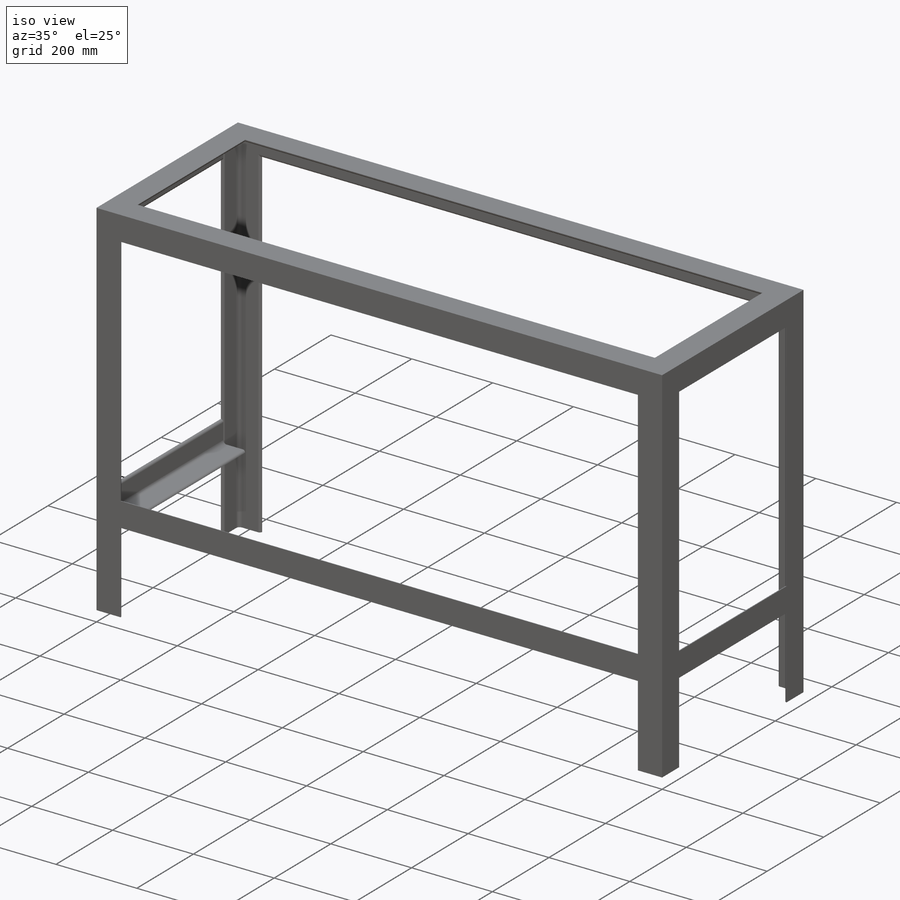
[diagram: iso view]
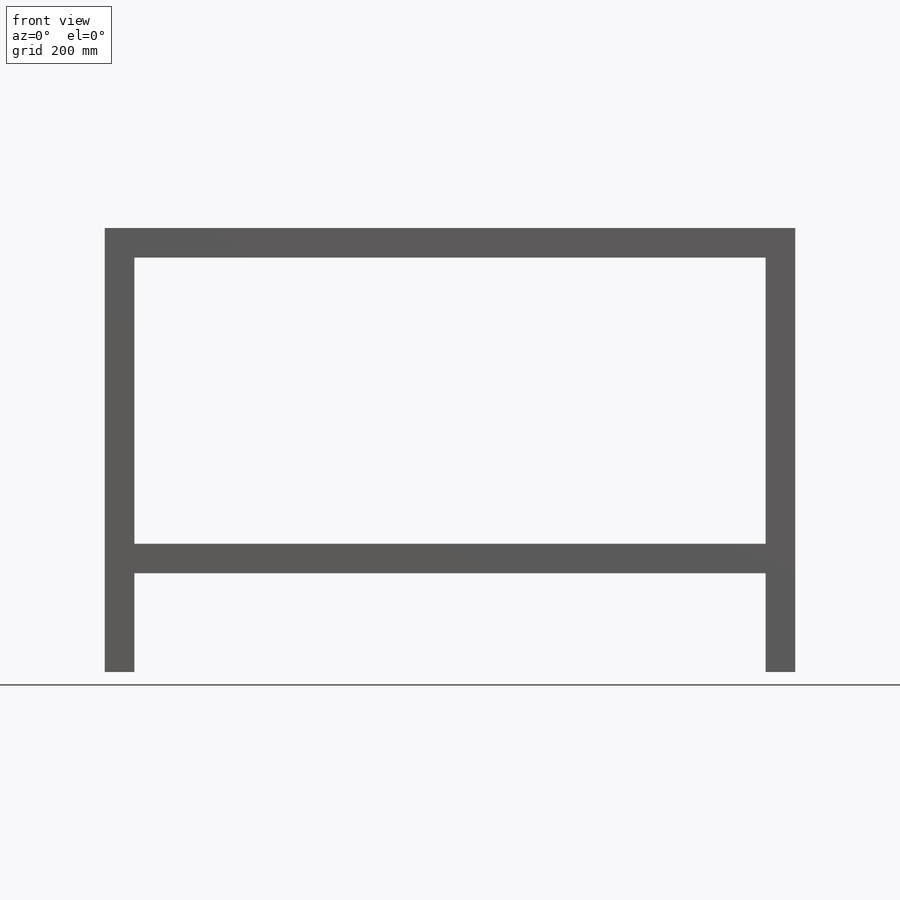
[diagram: front view]
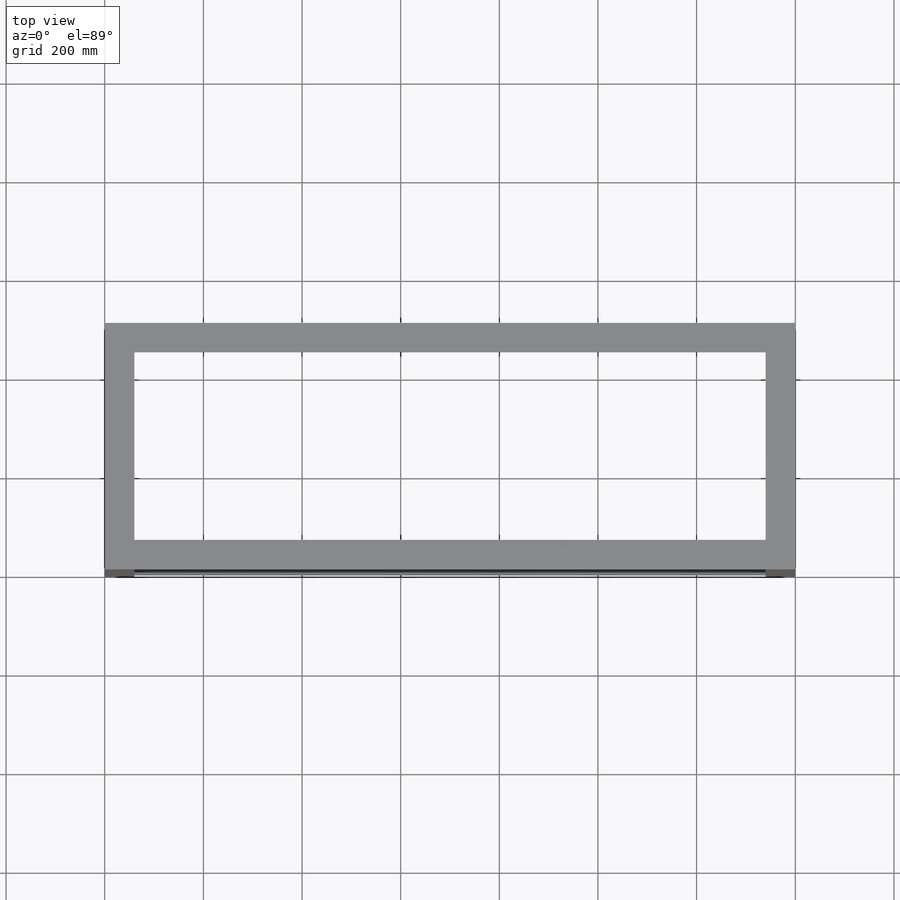
[diagram: top view]
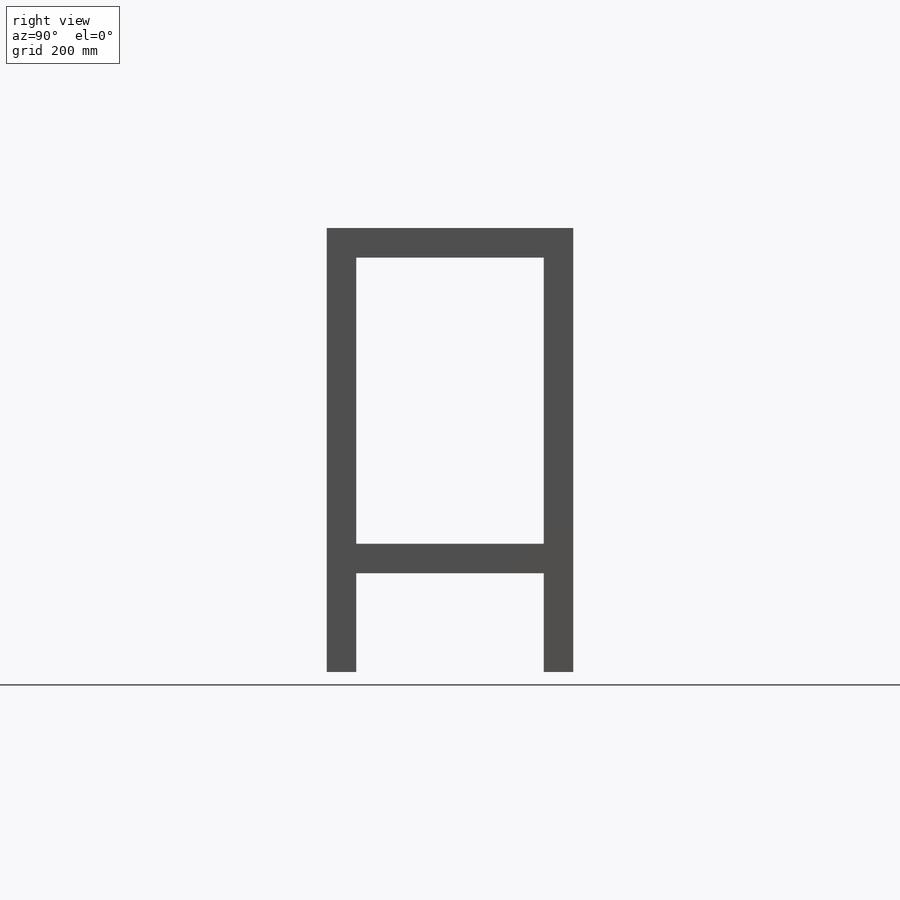
[diagram: right view]
SOLIDWORKS PART (.sldprt)
format: sldprt  version: not decoded by parser v0  size: 444,928 bytes
history: native  units: mm
features: plane x17, sketch x11, material x1, cut_extrude x1 (+9 scaffold rows collapsed; 1 parser-record rows omitted)
feature tree (40):
  scaffold x9  (default folders/planes/origin — collapsed)
  material  "Material <nicht festgelegt>"
  plane  "Ebene vorne"
  plane  "Ebene oben"
  plane  "Ebene rechts"
  parser-record x1  (decoder bookkeeping rows leaked as tree rows — omitted from the tree; the rows remain in map.json)
  plane  "Ebene_hinten"  Offset=500mm
  plane  "Ebene_unten"  Offset=900mm
  plane  "Ebene_vorne-Mitte"
  plane  "Ebene_links"  Offset=1400mm
  plane  "Ebene_rechts-Mitte"
  plane  "Ebene_Streben-unten"  Offset=200mm
  sketch  "Skizze1"
  sketch  "Skizze2"
  sketch  "Skizze3"
  sketch  "Skizze4"
  plane  "Ebene11"
  sketch  "Sketch1"  dims[c1.Radius_2=4.7625mm c1.Radius_1=8.0mm c2.Radius_2=6.0mm c2.V_leg=50.8mm c2.H_leg=50.8mm c2.Thickness=6.35mm c2.D1=6.35mm c2.D3=46.0375mm c3.V_leg=50.8mm c3.H_leg=50.8mm c4.V_leg=60.0mm c4.H_leg=60.0mm c4.D3=6.35mm c4.D1=6.0mm c4.thickness=6.0mm]
  plane  "Ebene12"
  sketch  "Sketch11"  dims[c1.Radius_2=4.7625mm c1.Radius_1=8.0mm c2.Radius_2=6.0mm c2.V_leg=50.8mm c2.H_leg=50.8mm c2.Thickness=6.35mm c2.D1=6.35mm c2.D3=46.0375mm c3.V_leg=50.8mm c3.H_leg=50.8mm c4.V_leg=60.0mm c4.H_leg=60.0mm c4.D3=6.35mm c4.D1=6.0mm c4.thickness=6.0mm]
  plane  "Ebene15"
  sketch  "Sketch12"  dims[c1.Radius_2=4.7625mm c1.Radius_1=8.0mm c2.Radius_2=6.0mm c2.V_leg=50.8mm c2.H_leg=50.8mm c2.Thickness=6.35mm c2.D1=6.35mm c2.D3=46.0375mm c3.V_leg=50.8mm c3.H_leg=50.8mm c4.V_leg=60.0mm c4.H_leg=60.0mm c4.D3=6.35mm c4.D1=6.0mm c4.thickness=6.0mm]
  plane  "Ebene16"
  sketch  "Sketch13"  dims[c1.Radius_2=4.7625mm c1.Radius_1=8.0mm c2.Radius_2=6.0mm c2.V_leg=50.8mm c2.H_leg=50.8mm c2.Thickness=6.35mm c2.D1=6.35mm c2.D3=46.0375mm c3.V_leg=50.8mm c3.H_leg=50.8mm c4.V_leg=60.0mm c4.H_leg=60.0mm c4.D3=6.35mm c4.D1=6.0mm c4.thickness=6.0mm]
  plane  "Ebene17"
  sketch  "Sketch14"  dims[c1.Radius_2=4.7625mm c1.Radius_1=8.0mm c2.Radius_2=6.0mm c2.V_leg=50.8mm c2.H_leg=50.8mm c2.Thickness=6.35mm c2.D1=6.35mm c2.D3=46.0375mm c3.V_leg=50.8mm c3.H_leg=50.8mm c4.V_leg=60.0mm c4.H_leg=60.0mm c4.D3=6.35mm c4.D1=6.0mm c4.thickness=6.0mm]
  plane  "Ebene13"
  plane  "Ebene14"
  plane  "Ebene18"
  sketch  "Sketch15"  dims[c1.Radius_2=4.7625mm c1.Radius_1=8.0mm c2.Radius_2=6.0mm c2.V_leg=50.8mm c2.H_leg=50.8mm c2.Thickness=6.35mm c2.D1=6.35mm c2.D3=46.0375mm c3.V_leg=50.8mm c3.H_leg=50.8mm c4.V_leg=60.0mm c4.H_leg=60.0mm c4.D3=6.35mm c4.D1=6.0mm c4.thickness=6.0mm]
  sketch  "Skizze5"
  cut_extrude  "Schnitt-Linear austragen1"  [1 undecoded]
decode coverage: 6 of 12 modeling features carry decoded parameters
note: 1 parameter value undecoded
note: suppression state not decoded; provenance and decode notes live in map.json
